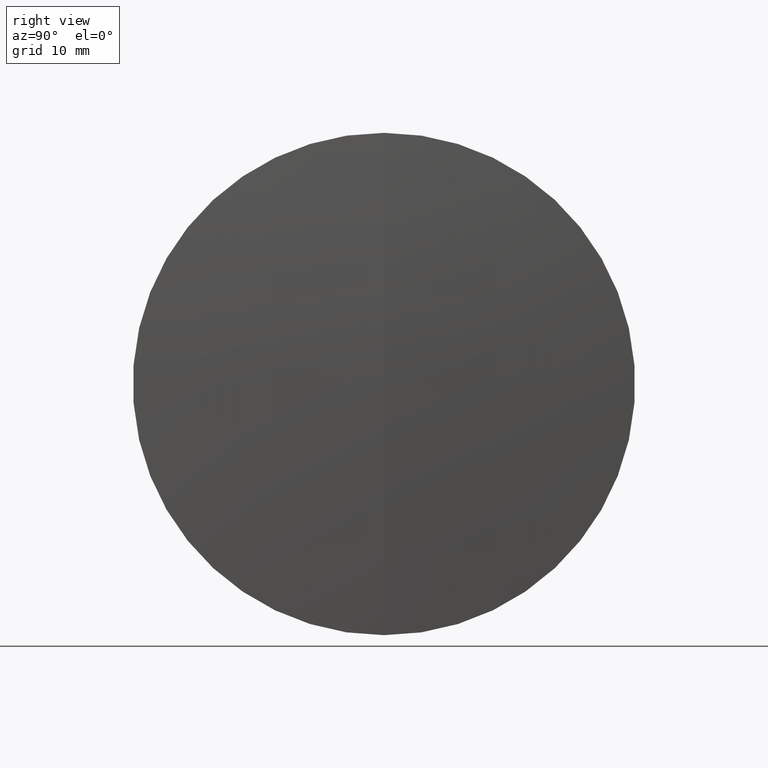
[diagram: clean part render]
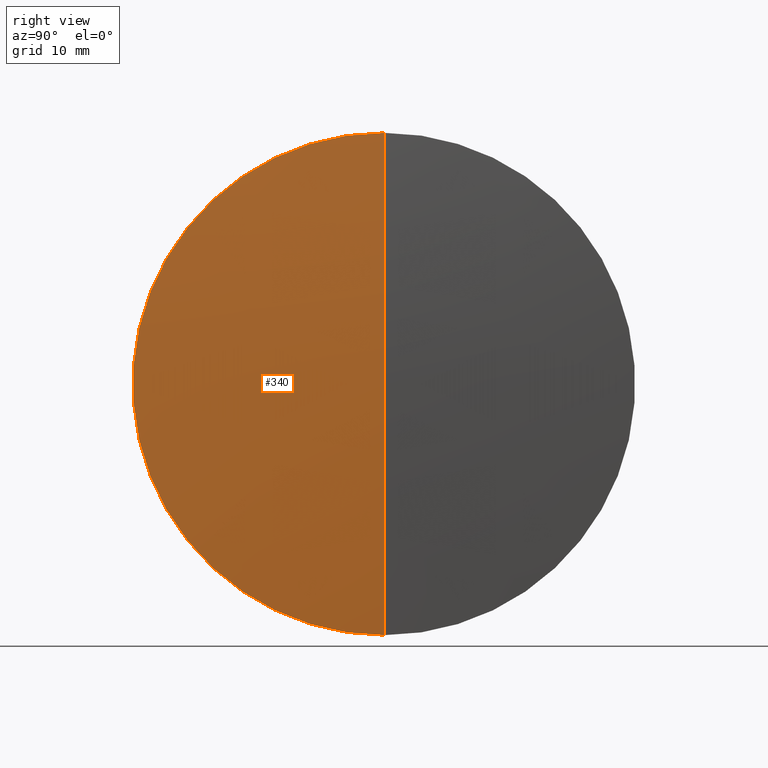
[diagram: same view with one face highlighted and labeled with its STEP entity id]
A machine part, right view. The second image highlights one B-rep face of the part: STEP entity #340.
In plain terms, the highlighted spherical surface has radius 312.6 mm.
Its self-contained STEP definition (entity closure, byte-faithful):
#1 = CARTESIAN_POINT ( 'NONE',  ( 531.7248018310176600, 0.0000000000000000000, 25.40000000000001300 ) ) ;
#8 = AXIS2_PLACEMENT_3D ( 'NONE', #223, #71, #172 ) ;
#22 = AXIS2_PLACEMENT_3D ( 'NONE', #216, #127, #272 ) ;
#46 = FACE_OUTER_BOUND ( 'NONE', #215, .T. ) ;
#52 = CIRCLE ( 'NONE', #327, 312.5999999999999700 ) ;
#61 = CARTESIAN_POINT ( 'NONE',  ( 532.7584365089566100, 0.0000000000000000000, 1.914122947067313100E-014 ) ) ;
#71 = DIRECTION ( 'NONE',  ( -1.000000000000000000, -0.0000000000000000000, -0.0000000000000000000 ) ) ;
#80 = ORIENTED_EDGE ( 'NONE', *, *, #169, .T. ) ;
#93 = ORIENTED_EDGE ( 'NONE', *, *, #205, .F. ) ;
#112 = DIRECTION ( 'NONE',  ( 0.0000000000000000000, -1.000000000000000000, 0.0000000000000000000 ) ) ;
#117 = AXIS2_PLACEMENT_3D ( 'NONE', #210, #112, #307 ) ;
#121 = ORIENTED_EDGE ( 'NONE', *, *, #321, .F. ) ;
#127 = DIRECTION ( 'NONE',  ( 0.0000000000000000000, 1.000000000000000000, 0.0000000000000000000 ) ) ;
#132 = DIRECTION ( 'NONE',  ( 0.0000000000000000000, -1.224646799147353500E-016, 1.000000000000000000 ) ) ;
#169 = EDGE_CURVE ( 'NONE', #295, #252, #341, .T. ) ;
#171 = VERTEX_POINT ( 'NONE', #287 ) ;
#172 = DIRECTION ( 'NONE',  ( 0.0000000000000000000, 0.0000000000000000000, 1.000000000000000000 ) ) ;
#179 = SPHERICAL_SURFACE ( 'NONE', #22, 312.5999999999999700 ) ;
#205 = EDGE_CURVE ( 'NONE', #295, #171, #52, .T. ) ;
#210 = CARTESIAN_POINT ( 'NONE',  ( 220.1584365089566700, 0.0000000000000000000, 0.0000000000000000000 ) ) ;
#215 = EDGE_LOOP ( 'NONE', ( #93, #80, #121 ) ) ;
#216 = CARTESIAN_POINT ( 'NONE',  ( 220.1584365089566700, 0.0000000000000000000, 0.0000000000000000000 ) ) ;
#223 = CARTESIAN_POINT ( 'NONE',  ( 531.7248018310176600, 0.0000000000000000000, 0.0000000000000000000 ) ) ;
#252 = VERTEX_POINT ( 'NONE', #1 ) ;
#272 = DIRECTION ( 'NONE',  ( 0.0000000000000000000, 0.0000000000000000000, 1.000000000000000000 ) ) ;
#287 = CARTESIAN_POINT ( 'NONE',  ( 531.7248018310176600, 3.110602869834278800E-015, -25.40000000000001300 ) ) ;
#295 = VERTEX_POINT ( 'NONE', #61 ) ;
#307 = DIRECTION ( 'NONE',  ( 0.0000000000000000000, 0.0000000000000000000, -1.000000000000000000 ) ) ;
#314 = DIRECTION ( 'NONE',  ( -0.0000000000000000000, 1.000000000000000000, 1.224646799147353200E-016 ) ) ;
#321 = EDGE_CURVE ( 'NONE', #171, #252, #322, .T. ) ;
#322 = CIRCLE ( 'NONE', #8, 25.40000000000001300 ) ;
#327 = AXIS2_PLACEMENT_3D ( 'NONE', #346, #314, #132 ) ;
#340 = ADVANCED_FACE ( 'NONE', ( #46 ), #179, .T. ) ;
#341 = CIRCLE ( 'NONE', #117, 312.5999999999999700 ) ;
#346 = CARTESIAN_POINT ( 'NONE',  ( 220.1584365089566700, 0.0000000000000000000, 0.0000000000000000000 ) ) ;